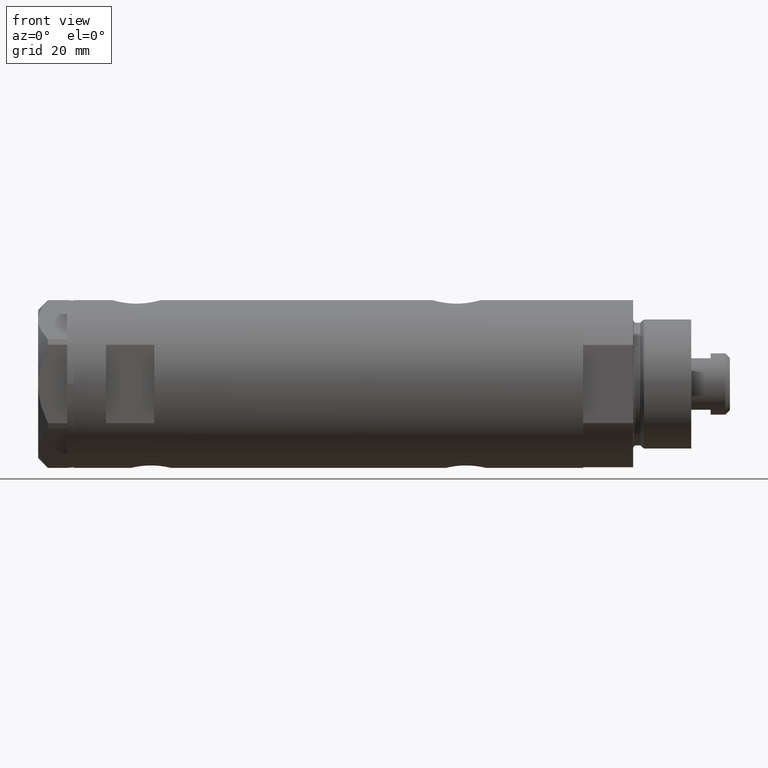
[diagram: clean part render]
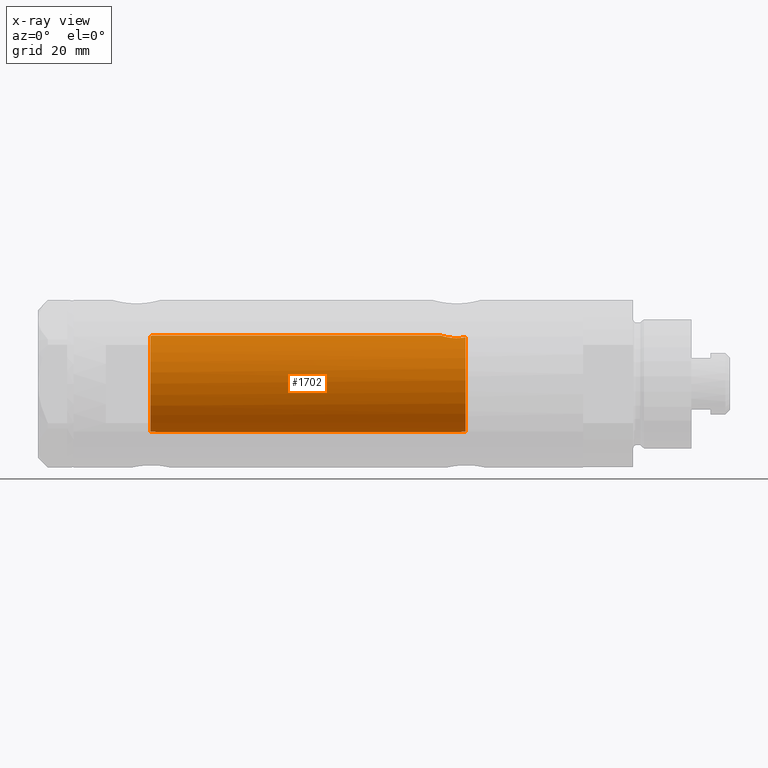
[diagram: x-ray — body ghosted, one internal face saturated and labeled with its STEP entity id]
A machine part, front view, then the same camera in x-ray: the body is ghosted and one INTERNAL B-rep face — a face not visible from any outside direction — is saturated and labeled: STEP entity #1702.
In plain terms, the highlighted cylindrical surface (partial cylindrical patch) has radius 15 mm, axis along (1, 0, -0).
Its self-contained STEP definition (entity closure, byte-faithful):
#38 = CARTESIAN_POINT ( 'NONE',  ( 14.33349657381506503, -4.422893686125040524, -41.78827841538882382 ) ) ;
#55 = CARTESIAN_POINT ( 'NONE',  ( -14.92627313122705779, -1.491421694539938336, -40.63730514635739155 ) ) ;
#68 = VECTOR ( 'NONE', #156, 1000.000000000000000 ) ;
#156 = DIRECTION ( 'NONE',  ( -0.000000000000000000, -0.000000000000000000, -1.000000000000000000 ) ) ;
#163 = ORIENTED_EDGE ( 'NONE', *, *, #895, .T. ) ;
#202 = EDGE_CURVE ( 'NONE', #4558, #3951, #1351, .T. ) ;
#357 = CARTESIAN_POINT ( 'NONE',  ( -14.97699254061833152, -0.8454257663520247101, 52.59097868826833633 ) ) ;
#365 = CARTESIAN_POINT ( 'NONE',  ( -14.87290636797879984, -1.950714596786577326, -41.07831246618853527 ) ) ;
#373 = CARTESIAN_POINT ( 'NONE',  ( 14.90017778876745247, -1.739641523727902594, -35.20130925695126933 ) ) ;
#401 = CARTESIAN_POINT ( 'NONE',  ( 15.00000000000000000, 5.959273468635536151E-16, -34.88499999999999801 ) ) ;
#421 = EDGE_CURVE ( 'NONE', #1850, #3951, #4517, .T. ) ;
#454 = CARTESIAN_POINT ( 'NONE',  ( 14.64727859494137618, -3.248701865452408910, -36.10174013696654782 ) ) ;
#463 = ORIENTED_EDGE ( 'NONE', *, *, #1743, .F. ) ;
#465 = ORIENTED_EDGE ( 'NONE', *, *, #3733, .F. ) ;
#524 = DIRECTION ( 'NONE',  ( -0.000000000000000000, -0.000000000000000000, -1.000000000000000000 ) ) ;
#530 = CARTESIAN_POINT ( 'NONE',  ( -14.79053751558745589, -2.497999199359361544, -42.55000000000000426 ) ) ;
#571 = CARTESIAN_POINT ( 'NONE',  ( 14.46277203719950677, -3.978470183374504199, -42.55000000000000426 ) ) ;
#579 = ORIENTED_EDGE ( 'NONE', *, *, #421, .F. ) ;
#611 = CARTESIAN_POINT ( 'NONE',  ( 15.00000000000000000, 1.836970198721029589E-15, 78.95000000000000284 ) ) ;
#617 = B_SPLINE_CURVE_WITH_KNOTS ( 'NONE', 3,
 ( #5040, #4655, #3034, #1848, #3464, #5061, #1055, #4269 ),
 .UNSPECIFIED., .F., .F.,
 ( 4, 2, 2, 4 ),
 ( 0.000000000000000000, 0.001182100180564266178, 0.001773150270846399375, 0.002364200361128532355 ),
 .UNSPECIFIED. ) ;
#753 = CARTESIAN_POINT ( 'NONE',  ( -14.85859683553260346, -2.056701007386132041, 53.51843972450895137 ) ) ;
#760 = CARTESIAN_POINT ( 'NONE',  ( -15.00000000000000355, -0.1613061104920440469, -40.15000000000001279 ) ) ;
#793 = CARTESIAN_POINT ( 'NONE',  ( 14.42775250319759728, -4.105775281508733165, -42.36911445102906981 ) ) ;
#809 = CARTESIAN_POINT ( 'NONE',  ( -14.79268570220017764, -2.485279885960844037, -42.23227165314102649 ) ) ;
#840 = CYLINDRICAL_SURFACE ( 'NONE', #1239, 15.00000000000000000 ) ;
#851 = CARTESIAN_POINT ( 'NONE',  ( 14.23984499268010673, -4.714778477509579346, -38.53008258614764259 ) ) ;
#873 = CARTESIAN_POINT ( 'NONE',  ( 14.92307637240704032, -1.532123959568890914, -35.12726557582076481 ) ) ;
#895 = EDGE_CURVE ( 'NONE', #4207, #3283, #3331, .T. ) ;
#1055 = CARTESIAN_POINT ( 'NONE',  ( 14.85289483991917336, -2.102865829523694607, 55.05860377881607093 ) ) ;
#1094 = CARTESIAN_POINT ( 'NONE',  ( -14.82167156606024427, -2.306788152106015399, 53.97115114601641750 ) ) ;
#1193 = CARTESIAN_POINT ( 'NONE',  ( 14.18786347641749579, -4.868757996482115047, -39.63322300400292164 ) ) ;
#1197 = EDGE_CURVE ( 'NONE', #1850, #1324, #3502, .T. ) ;
#1217 = CARTESIAN_POINT ( 'NONE',  ( 14.25856516724843992, -4.658255869285516049, -41.17044016644936733 ) ) ;
#1234 = CARTESIAN_POINT ( 'NONE',  ( -14.96154495298568854, -1.083625483837070469, -40.39138979525009177 ) ) ;
#1239 = AXIS2_PLACEMENT_3D ( 'NONE', #4521, #524, #4492 ) ;
#1324 = VERTEX_POINT ( 'NONE', #5059 ) ;
#1351 = LINE ( 'NONE', #611, #4832 ) ;
#1479 = ORIENTED_EDGE ( 'NONE', *, *, #2540, .F. ) ;
#1484 = CARTESIAN_POINT ( 'NONE',  ( 0.000000000000000000, 0.000000000000000000, 55.15000000000000568 ) ) ;
#1509 = CARTESIAN_POINT ( 'NONE',  ( -15.00000000000000000, 0.000000000000000000, -40.15000000000000568 ) ) ;
#1510 = ORIENTED_EDGE ( 'NONE', *, *, #202, .T. ) ;
#1542 = CARTESIAN_POINT ( 'NONE',  ( -15.00000000000000000, 3.061618115931352638E-16, 52.45000000000000284 ) ) ;
#1559 = CARTESIAN_POINT ( 'NONE',  ( 14.99508877558422704, -0.4434836953032598172, -34.90007684727663673 ) ) ;
#1626 = DIRECTION ( 'NONE',  ( -1.000000000000000000, 0.000000000000000000, 0.000000000000000000 ) ) ;
#1636 = CARTESIAN_POINT ( 'NONE',  ( 14.49994286062941562, -3.853373987417222590, -36.74743896782911889 ) ) ;
#1651 = CARTESIAN_POINT ( 'NONE',  ( -14.98007298506453111, -0.7870736506658194687, -40.27174868555715648 ) ) ;
#1662 = CARTESIAN_POINT ( 'NONE',  ( 14.97537530859972321, -0.8874117095427787039, -34.96137464055828303 ) ) ;
#1695 = ORIENTED_EDGE ( 'NONE', *, *, #1197, .T. ) ;
#1702 = ADVANCED_FACE ( 'NONE', ( #4071 ), #840, .F. ) ;
#1743 = EDGE_CURVE ( 'NONE', #3882, #3706, #4993, .T. ) ;
#1848 = CARTESIAN_POINT ( 'NONE',  ( 14.93900636919599911, -1.364886281976677163, 54.77622504971314754 ) ) ;
#1850 = VERTEX_POINT ( 'NONE', #571 ) ;
#1877 = CARTESIAN_POINT ( 'NONE',  ( -14.90147761301467533, -1.720422196468683662, 53.12794212931562043 ) ) ;
#1960 = CARTESIAN_POINT ( 'NONE',  ( -14.99695275358353719, -0.3460123648701035060, 52.46810396824247391 ) ) ;
#1976 = CARTESIAN_POINT ( 'NONE',  ( 14.72015646623406582, -2.909233045280603225, -35.82572079632733875 ) ) ;
#1978 = CARTESIAN_POINT ( 'NONE',  ( -15.00000000000000000, 3.061618115931352638E-16, 52.45000000000000284 ) ) ;
#1987 = CARTESIAN_POINT ( 'NONE',  ( -14.79723843696374708, -2.458094276708261194, 54.46231574989081992 ) ) ;
#2101 = CARTESIAN_POINT ( 'NONE',  ( -15.00000000000000000, 0.000000000000000000, 78.95000000000000284 ) ) ;
#2144 = CARTESIAN_POINT ( 'NONE',  ( 14.18781489734107737, -4.868896704194243696, -39.85545969036061820 ) ) ;
#2319 = AXIS2_PLACEMENT_3D ( 'NONE', #2930, #2976, #1626 ) ;
#2360 = CARTESIAN_POINT ( 'NONE',  ( -14.78989771875219894, -2.501882951377200737, 54.80631597653683684 ) ) ;
#2366 = CARTESIAN_POINT ( 'NONE',  ( -14.98749134158486740, -0.6320459414166014200, -40.22599747929444192 ) ) ;
#2382 = CARTESIAN_POINT ( 'NONE',  ( -14.87260732106556560, -1.954338522023925773, 53.38146298750767471 ) ) ;
#2453 = CARTESIAN_POINT ( 'NONE',  ( 14.19797987272029438, -4.839174951492910104, -40.29741451501411120 ) ) ;
#2540 = EDGE_CURVE ( 'NONE', #3706, #1324, #4718, .T. ) ;
#2543 = CARTESIAN_POINT ( 'NONE',  ( 14.25977760983849052, -4.654557688538888627, -38.31736805897653397 ) ) ;
#2719 = CARTESIAN_POINT ( 'NONE',  ( -14.95581892566389470, -1.161262481484112374, 52.72937042154404708 ) ) ;
#2758 = B_SPLINE_CURVE_WITH_KNOTS ( 'NONE', 3,
 ( #3966, #4695, #2360, #1987, #3096, #1094, #3883, #753, #2382, #1877, #5092, #3061, #2719, #357, #3493, #1960, #4722, #1542 ),
 .UNSPECIFIED., .F., .F.,
 ( 4, 2, 2, 2, 2, 2, 2, 2, 4 ),
 ( 0.003715686714229633498, 0.004229951999599992213, 0.004744217284970350494, 0.005258482570340708775, 0.005772747855711067924, 0.006287013141081425338, 0.006801278426451784487, 0.007315543711822143635, 0.007829808997192501049 ),
 .UNSPECIFIED. ) ;
#2791 = CARTESIAN_POINT ( 'NONE',  ( 14.19858338301462908, -4.837406781463696070, -39.18614104090497108 ) ) ;
#2832 = CARTESIAN_POINT ( 'NONE',  ( -14.95054302956255121, -1.224431043437663513, -40.46458290830103266 ) ) ;
#2848 = CARTESIAN_POINT ( 'NONE',  ( 14.39424372609267699, -4.221002267729138779, -42.17893131093288872 ) ) ;
#2872 = CARTESIAN_POINT ( 'NONE',  ( 14.46277203719950677, -3.978470183374504199, -42.55000000000000426 ) ) ;
#2930 = CARTESIAN_POINT ( 'NONE',  ( 0.000000000000000000, 0.000000000000000000, -42.55000000000000426 ) ) ;
#2976 = DIRECTION ( 'NONE',  ( 0.000000000000000000, 0.000000000000000000, -1.000000000000000000 ) ) ;
#3034 = CARTESIAN_POINT ( 'NONE',  ( 14.98404828787190546, -0.7909490205761878778, 54.63356230794190793 ) ) ;
#3061 = CARTESIAN_POINT ( 'NONE',  ( -14.94313933514151493, -1.312299271472206152, 52.81526966946925938 ) ) ;
#3088 = DIRECTION ( 'NONE',  ( 0.000000000000000000, 0.000000000000000000, 1.000000000000000000 ) ) ;
#3096 = CARTESIAN_POINT ( 'NONE',  ( -14.80379558280398733, -2.418854260473059625, 54.29535450491658821 ) ) ;
#3210 = CARTESIAN_POINT ( 'NONE',  ( -14.88625129008226722, -1.847379311388058998, -40.95812992433160815 ) ) ;
#3264 = CARTESIAN_POINT ( 'NONE',  ( -14.84760220014584853, -2.134792770974418552, -41.33921818480346388 ) ) ;
#3282 = CARTESIAN_POINT ( 'NONE',  ( 15.00000000000000000, 5.959273468635536151E-16, -34.88499999999999801 ) ) ;
#3283 = VERTEX_POINT ( 'NONE', #3395 ) ;
#3331 = CIRCLE ( 'NONE', #3915, 15.00000000000000000 ) ;
#3395 = CARTESIAN_POINT ( 'NONE',  ( 14.82638779339053769, -2.275571356824481750, 55.15000000000000568 ) ) ;
#3464 = CARTESIAN_POINT ( 'NONE',  ( 14.92029983160078466, -1.555365312915176323, 54.83609703141411984 ) ) ;
#3465 = EDGE_LOOP ( 'NONE', ( #465, #1510, #579, #1695, #1479, #463, #3785, #163 ) ) ;
#3493 = CARTESIAN_POINT ( 'NONE',  ( -14.98541608527169977, -0.6823644196029143849, 52.53879464417551048 ) ) ;
#3502 = CIRCLE ( 'NONE', #2319, 15.00000000000000000 ) ;
#3590 = CARTESIAN_POINT ( 'NONE',  ( 14.84733308118440043, -2.144376633039216884, -35.37751912952715116 ) ) ;
#3620 = CARTESIAN_POINT ( 'NONE',  ( 15.00000000000000355, -0.2216692655473436746, -34.88499999999999801 ) ) ;
#3644 = CARTESIAN_POINT ( 'NONE',  ( 14.23846660849503820, -4.718934182878723682, -40.95401121469809169 ) ) ;
#3669 = CARTESIAN_POINT ( 'NONE',  ( 14.96064712090283777, -1.106639041422191827, -35.00738179736369915 ) ) ;
#3706 = VERTEX_POINT ( 'NONE', #1509 ) ;
#3718 = CARTESIAN_POINT ( 'NONE',  ( -14.79155164274525980, -2.491987158875424768, 55.15000000000000568 ) ) ;
#3733 = EDGE_CURVE ( 'NONE', #4558, #3283, #617, .T. ) ;
#3785 = ORIENTED_EDGE ( 'NONE', *, *, #4480, .F. ) ;
#3882 = VERTEX_POINT ( 'NONE', #1978 ) ;
#3883 = CARTESIAN_POINT ( 'NONE',  ( -14.83314878996174357, -2.232849285003168482, 53.81256080311607803 ) ) ;
#3908 = CARTESIAN_POINT ( 'NONE',  ( 15.00000000000000000, 0.000000000000000000, 54.58500000000000085 ) ) ;
#3915 = AXIS2_PLACEMENT_3D ( 'NONE', #1484, #3088, #4692 ) ;
#3951 = VERTEX_POINT ( 'NONE', #3282 ) ;
#3966 = CARTESIAN_POINT ( 'NONE',  ( -14.79155164274525980, -2.491987158875424768, 55.15000000000000568 ) ) ;
#3980 = CARTESIAN_POINT ( 'NONE',  ( 14.20926245015526135, -4.806160851464706063, -38.96377327795616452 ) ) ;
#4008 = CARTESIAN_POINT ( 'NONE',  ( 14.42796883436189859, -4.108435602805832865, -37.10726922759030799 ) ) ;
#4048 = CARTESIAN_POINT ( 'NONE',  ( -14.99740058099026108, -0.3199290537848252236, -40.16546469274585718 ) ) ;
#4071 = FACE_OUTER_BOUND ( 'NONE', #3465, .T. ) ;
#4207 = VERTEX_POINT ( 'NONE', #3718 ) ;
#4269 = CARTESIAN_POINT ( 'NONE',  ( 14.82638779339053769, -2.275571356824481750, 55.15000000000000568 ) ) ;
#4395 = CARTESIAN_POINT ( 'NONE',  ( 14.33594561531103828, -4.414979644548148840, -37.69453393419242815 ) ) ;
#4412 = CARTESIAN_POINT ( 'NONE',  ( -15.00000000000000000, 0.000000000000000000, -40.15000000000000568 ) ) ;
#4444 = CARTESIAN_POINT ( 'NONE',  ( -14.91288509639097981, -1.618377549727003650, -40.73790984008953586 ) ) ;
#4454 = CARTESIAN_POINT ( 'NONE',  ( 14.81710879718118434, -2.343063746046468943, -35.48067662538953471 ) ) ;
#4476 = CARTESIAN_POINT ( 'NONE',  ( 14.30772250772359833, -4.505024017690381299, -37.90010806953218037 ) ) ;
#4480 = EDGE_CURVE ( 'NONE', #4207, #3882, #2758, .T. ) ;
#4492 = DIRECTION ( 'NONE',  ( -1.000000000000000000, 0.000000000000000000, 0.000000000000000000 ) ) ;
#4517 = B_SPLINE_CURVE_WITH_KNOTS ( 'NONE', 3,
 ( #2872, #793, #2848, #38, #4876, #1217, #3644, #4793, #2453, #2144, #1193, #2791, #3980, #851, #2543, #4476, #4395, #4008, #1636, #454, #1976, #4454, #3590, #373, #873, #3669, #1662, #1559, #3620, #401 ),
 .UNSPECIFIED., .F., .F.,
 ( 4, 2, 2, 2, 2, 2, 2, 2, 2, 2, 2, 2, 2, 2, 4 ),
 ( 0.004672505804584288491, 0.005337629501999293681, 0.006002753199414298003, 0.006667876896829303193, 0.007333000594244307516, 0.007998124291659313573, 0.008663247989074317895, 0.009328371686489322218, 0.009993495383904326540, 0.01132374277873435427, 0.01265399017356438199, 0.01331911387097939499, 0.01398423756839440972, 0.01464936126580942445, 0.01531448496322443745 ),
 .UNSPECIFIED. ) ;
#4521 = CARTESIAN_POINT ( 'NONE',  ( 0.000000000000000000, 0.000000000000000000, 78.95000000000000284 ) ) ;
#4554 = DIRECTION ( 'NONE',  ( -0.000000000000000000, -0.000000000000000000, -1.000000000000000000 ) ) ;
#4558 = VERTEX_POINT ( 'NONE', #3908 ) ;
#4655 = CARTESIAN_POINT ( 'NONE',  ( 15.00000000000000000, -0.3999014018875941545, 54.58499999999998664 ) ) ;
#4692 = DIRECTION ( 'NONE',  ( 1.000000000000000000, 0.000000000000000000, 0.000000000000000000 ) ) ;
#4695 = CARTESIAN_POINT ( 'NONE',  ( -14.78924132900106692, -2.505700361584525027, 54.97913437470933218 ) ) ;
#4718 = B_SPLINE_CURVE_WITH_KNOTS ( 'NONE', 3,
 ( #4412, #760, #4048, #2366, #1651, #1234, #2832, #55, #4444, #3210, #365, #3264, #4810, #4864, #809, #530 ),
 .UNSPECIFIED., .F., .F.,
 ( 4, 2, 2, 2, 2, 2, 2, 4 ),
 ( 0.000000000000000000, 0.0004769863284873110182, 0.0009539726569746220363, 0.001430958985461933163, 0.001907945313949244073, 0.002384931642436555199, 0.002861917970923867193, 0.003815890627898489880 ),
 .UNSPECIFIED. ) ;
#4722 = CARTESIAN_POINT ( 'NONE',  ( -14.99999999999999822, -0.1716226368084269316, 52.45000000000001705 ) ) ;
#4793 = CARTESIAN_POINT ( 'NONE',  ( 14.20819413761015859, -4.809312895991456394, -40.51713251522166814 ) ) ;
#4810 = CARTESIAN_POINT ( 'NONE',  ( -14.83575030094399949, -2.214690538106012685, -41.47938890130203049 ) ) ;
#4832 = VECTOR ( 'NONE', #4554, 1000.000000000000000 ) ;
#4864 = CARTESIAN_POINT ( 'NONE',  ( -14.80570803900864263, -2.410056876876582432, -41.91354637206099198 ) ) ;
#4876 = CARTESIAN_POINT ( 'NONE',  ( 14.30602371879161794, -4.510400617436904902, -41.58665028800272978 ) ) ;
#4993 = LINE ( 'NONE', #2101, #68 ) ;
#5040 = CARTESIAN_POINT ( 'NONE',  ( 15.00000000000000000, 0.000000000000000000, 54.58500000000000085 ) ) ;
#5059 = CARTESIAN_POINT ( 'NONE',  ( -14.79053751558745589, -2.497999199359361544, -42.55000000000000426 ) ) ;
#5061 = CARTESIAN_POINT ( 'NONE',  ( 14.87720562886504538, -1.924385875533401125, 54.97741675737692191 ) ) ;
#5092 = CARTESIAN_POINT ( 'NONE',  ( -14.91608554980931878, -1.590576762727825333, 53.01369720243329198 ) ) ;